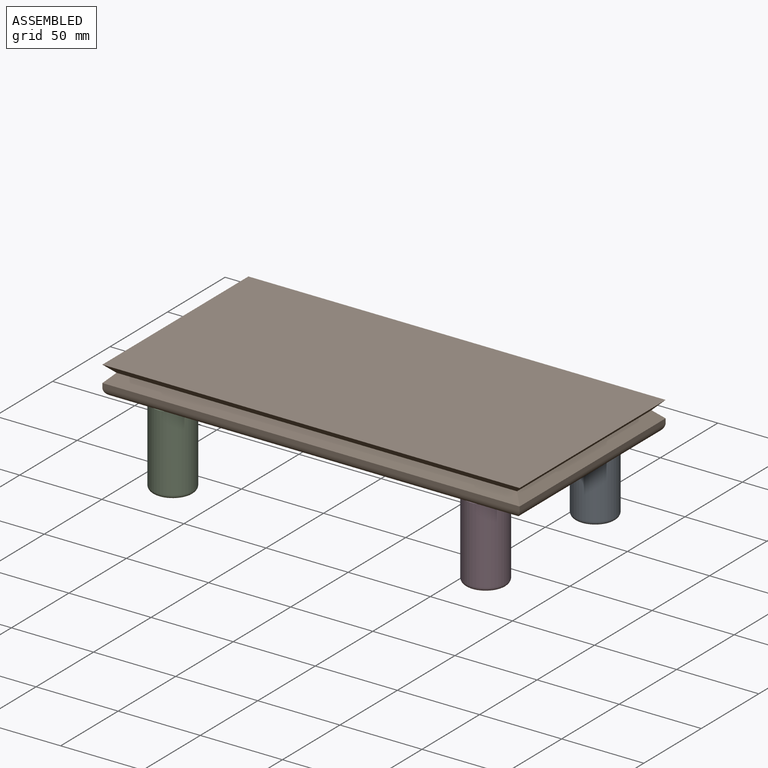
[diagram: assembled view]
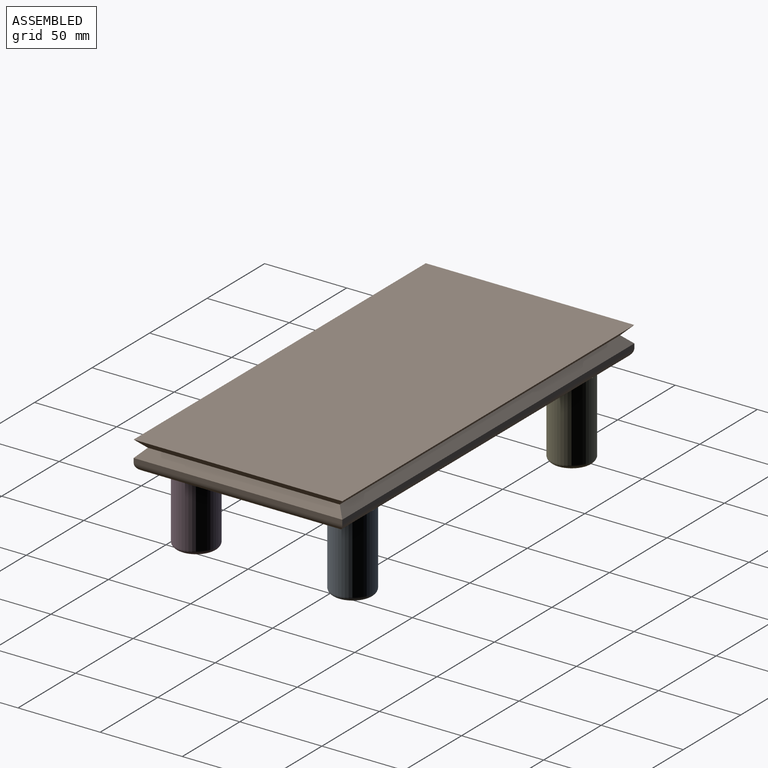
[diagram: assembled view, second angle]
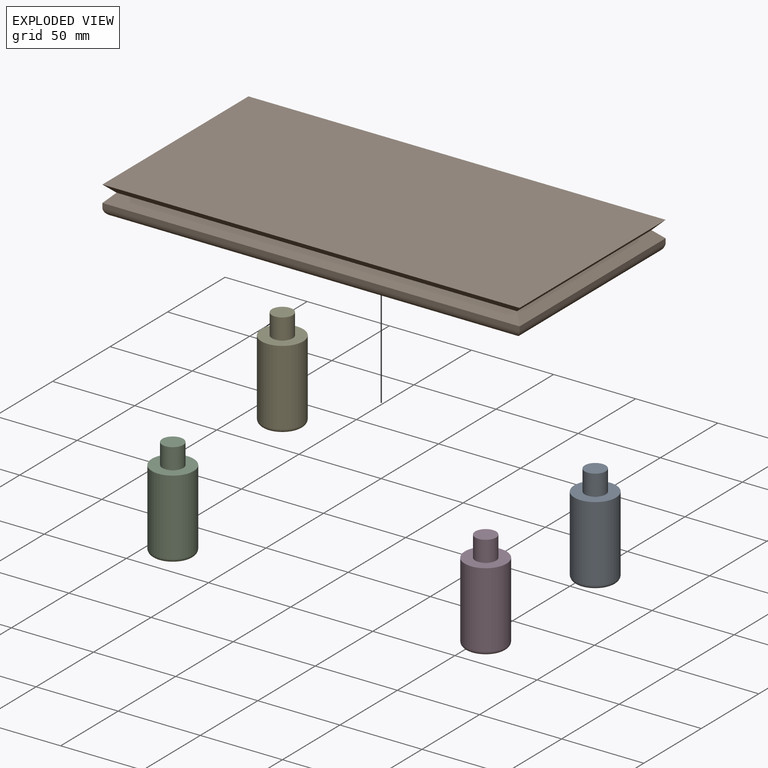
[diagram: exploded view]
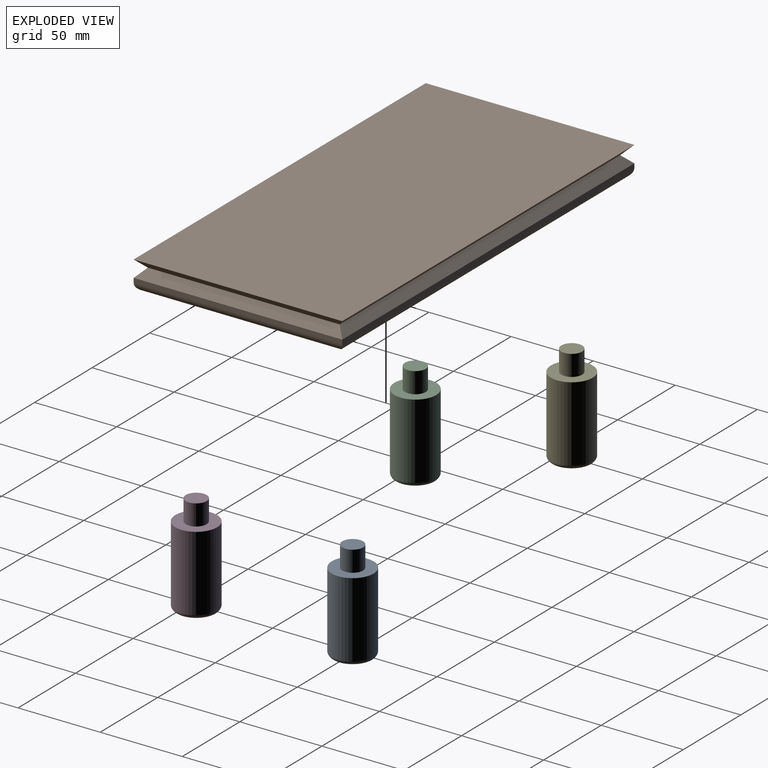
[diagram: exploded view, second angle]
ASSEMBLY  parts=5 mates=4
PART A: 7 faces, bbox 27.5x27.5x61 mm
  f0: cylinder r=12.7mm len=45.72mm, axis (0,0,-1), area 3648.3mm2, adj f1,f6
  f1: plane 25.4x25.4mm, normal (0,0,1), area 380mm2, adj f0,f2
  f2: cylinder r=6.35mm len=12.7mm, axis (0,0,-1), area 506.7mm2, adj f1,f3
  f3: plane 12.7x12.7mm, normal (0,0,1), area 126.7mm2, adj f2
  f4: cylinder r=7.62mm len=20.32mm, axis (0,0,-1), area 972.9mm2, adj f5,f6
  f5: plane 15.24x15.24mm, normal (0,0,-1), area 182.4mm2, adj f4
  f6: torus R=10.16mm, axis (0,0,1), area 509.4mm2, adj f0,f4
PART B: 26 faces, bbox 254x127x17.8 mm
  f0: plane 127x2.54mm, normal (1,0,0), area 322.6mm2, adj f1,f6,f9,f14
  f1: plane 254x2.54mm, normal (0,1,0), area 645.2mm2, adj f0,f2,f10,f13
  f2: plane 127x2.54mm, normal (-1,0,0), area 322.6mm2, adj f1,f6,f12,f15
  f3: cylinder r=6.35mm len=12.7mm, axis (0,0,-1), area 506.7mm2, adj f8,f18
  f4: cylinder r=6.35mm len=12.7mm, axis (0,0,-1), area 506.7mm2, adj f8,f19
  f5: cylinder r=6.35mm len=12.7mm, axis (0,0,-1), area 506.7mm2, adj f8,f20
  f6: plane 254x2.54mm, normal (0,-1,0), area 645.2mm2, adj f0,f2,f11,f16
  f7: cylinder r=6.35mm len=12.7mm, axis (0,0,-1), area 506.7mm2, adj f8,f17
  f8: plane 243.84x116.84mm, normal (0,0,-1), area 27983.6mm2, adj f3,f4,f5,f7,f13,f14,f15,f16
  f9: plane 127x5.08mm, normal (0.71,0,0.71), area 875.9mm2, adj f0,f10,f11,f23
  f10: plane 254x5.08mm, normal (0,0.71,0.71), area 1788.3mm2, adj f1,f9,f12,f25
  f11: plane 254x5.08mm, normal (0,-0.71,0.71), area 1788.3mm2, adj f6,f9,f12,f22
  f12: plane 127x5.08mm, normal (-0.71,0,0.71), area 875.9mm2, adj f2,f10,f11,f24
  f13: cylinder r=5.08mm len=254mm, axis (-1,0,0), area 1997.4mm2, adj f1,f8,f14,f15
  f14: cylinder r=5.08mm len=127mm, axis (0,1,0), area 984mm2, adj f0,f8,f13,f16
  f15: cylinder r=5.08mm len=127mm, axis (0,-1,0), area 984mm2, adj f2,f8,f13,f16
  f16: cylinder r=5.08mm len=254mm, axis (1,0,0), area 1997.4mm2, adj f6,f8,f14,f15
  f17: plane 12.7x12.7mm, normal (0,0,-1), area 126.7mm2, adj f7
  f18: plane 12.7x12.7mm, normal (0,0,-1), area 126.7mm2, adj f3
  f19: plane 12.7x12.7mm, normal (0,0,-1), area 126.7mm2, adj f4
  f20: plane 12.7x12.7mm, normal (0,0,-1), area 126.7mm2, adj f5
  f21: plane 254x127mm, normal (0,0,1), area 32258mm2, adj f22,f23,f24,f25
  f22: plane 254x5.08mm, normal (0,-0.71,-0.71), area 1788.3mm2, adj f11,f21,f23,f24
  f23: plane 127x5.08mm, normal (0.71,0,-0.71), area 875.9mm2, adj f9,f21,f22,f25
  f24: plane 127x5.08mm, normal (-0.71,0,-0.71), area 875.9mm2, adj f12,f21,f22,f25
  f25: plane 254x5.08mm, normal (0,0.71,-0.71), area 1788.3mm2, adj f10,f21,f23,f24
PART C: same geometry as A
PART D: same geometry as A
PART E: same geometry as A
PLACE A t=(60.94,56.39,-16.83)mm
PLACE B t=(-34.31,8.77,33.97)mm
PLACE C t=(-129.56,-38.86,-16.83)mm
PLACE D t=(60.94,-38.86,-16.83)mm
PLACE E t=(-129.56,56.39,-16.83)mm
MATE fastened A.f2 <-> B.f3  axis (0,0,1) through (60.94,56.39,46.67)mm
MATE fastened E.f2 <-> B.f4  axis (0,0,1) through (-129.56,56.39,46.67)mm
MATE fastened D.f2 <-> B.f7  axis (0,0,-1) through (60.94,-38.86,46.67)mm
MATE fastened C.f2 <-> B.f5  axis (0,0,1) through (-129.56,-38.86,46.67)mm
